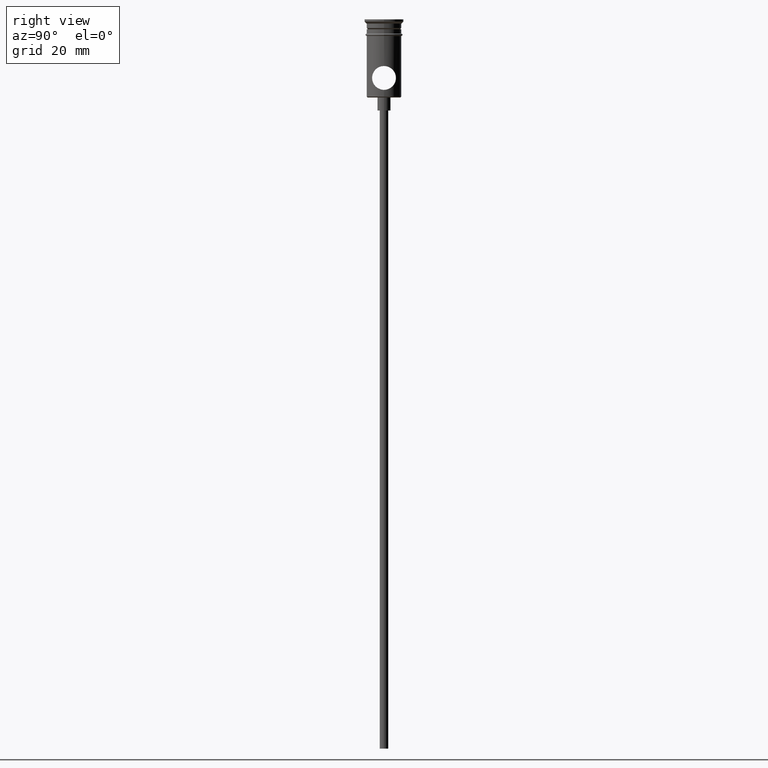
[diagram: clean part render]
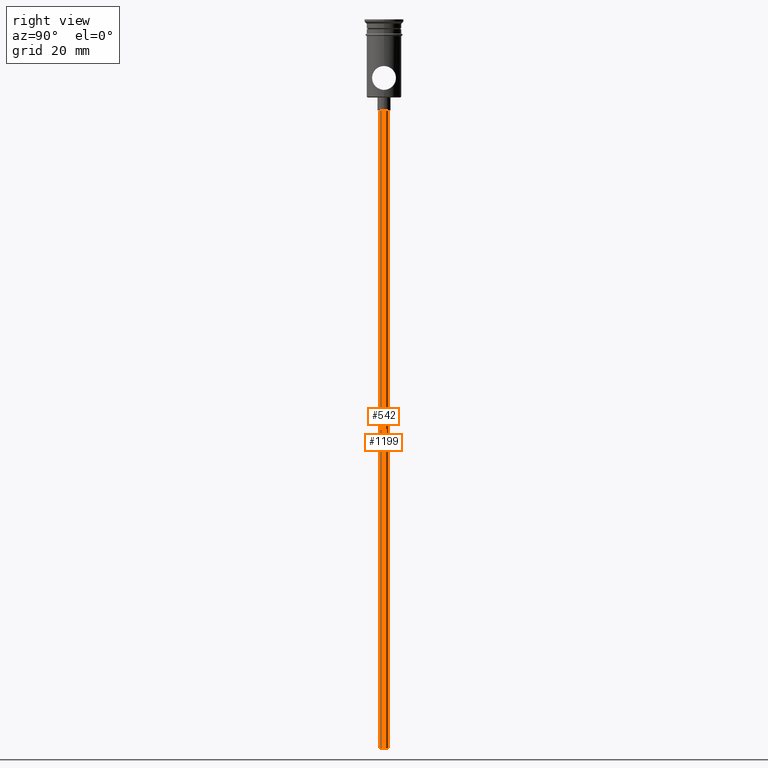
[diagram: same view with one multi-face feature highlighted, each face labeled with its STEP entity id]
A machine part, right view. The highlighted faces form ONE feature: a constant-radius fillet chain: 2 tangent blend faces with common blend radius 1 mm. The faces share edges in the B-rep.
Their STEP definitions:
[1] entity #542 (Cylinder):
#5 = EDGE_CURVE ( 'NONE', #1118, #304, #38, .T. ) ;
#32 = CARTESIAN_POINT ( 'NONE',  ( 0.000000000000000000, 0.000000000000000000, -167.9999999999999716 ) ) ;
#38 = CIRCLE ( 'NONE', #1111, 0.9999999999999997780 ) ;
#68 = CARTESIAN_POINT ( 'NONE',  ( -0.9999999999999997780, 1.224646799147352961E-16, -167.9999999999999716 ) ) ;
#85 = CARTESIAN_POINT ( 'NONE',  ( 0.9999999999999997780, 0.000000000000000000, -167.9999999999999716 ) ) ;
#88 = DIRECTION ( 'NONE',  ( 0.000000000000000000, 0.000000000000000000, -1.000000000000000000 ) ) ;
#166 = EDGE_CURVE ( 'NONE', #757, #304, #477, .T. ) ;
#191 = CARTESIAN_POINT ( 'NONE',  ( -0.9999999999999997780, 1.224646799147352961E-16, -20.99999999999999645 ) ) ;
#258 = CYLINDRICAL_SURFACE ( 'NONE', #455, 0.9999999999999997780 ) ;
#272 = DIRECTION ( 'NONE',  ( -0.000000000000000000, -0.000000000000000000, 1.000000000000000000 ) ) ;
#304 = VERTEX_POINT ( 'NONE', #191 ) ;
#337 = VERTEX_POINT ( 'NONE', #85 ) ;
#349 = DIRECTION ( 'NONE',  ( -0.000000000000000000, -0.000000000000000000, 1.000000000000000000 ) ) ;
#391 = ORIENTED_EDGE ( 'NONE', *, *, #166, .F. ) ;
#441 = ORIENTED_EDGE ( 'NONE', *, *, #5, .T. ) ;
#455 = AXIS2_PLACEMENT_3D ( 'NONE', #32, #272, #918 ) ;
#470 = CARTESIAN_POINT ( 'NONE',  ( 0.000000000000000000, 0.000000000000000000, -20.99999999999999645 ) ) ;
#477 = LINE ( 'NONE', #68, #1068 ) ;
#483 = EDGE_CURVE ( 'NONE', #337, #1118, #1331, .T. ) ;
#542 = ADVANCED_FACE ( 'NONE', ( #1254 ), #258, .T. ) ;
#558 = DIRECTION ( 'NONE',  ( -1.000000000000000000, 0.000000000000000000, 0.000000000000000000 ) ) ;
#570 = ORIENTED_EDGE ( 'NONE', *, *, #880, .F. ) ;
#650 = CARTESIAN_POINT ( 'NONE',  ( 0.9999999999999997780, 0.000000000000000000, -20.99999999999999645 ) ) ;
#741 = CARTESIAN_POINT ( 'NONE',  ( 0.000000000000000000, 0.000000000000000000, -167.9999999999999716 ) ) ;
#757 = VERTEX_POINT ( 'NONE', #988 ) ;
#811 = DIRECTION ( 'NONE',  ( -0.000000000000000000, -0.000000000000000000, 1.000000000000000000 ) ) ;
#880 = EDGE_CURVE ( 'NONE', #337, #757, #1213, .T. ) ;
#899 = DIRECTION ( 'NONE',  ( 0.000000000000000000, 0.000000000000000000, -1.000000000000000000 ) ) ;
#918 = DIRECTION ( 'NONE',  ( 1.000000000000000000, 0.000000000000000000, 0.000000000000000000 ) ) ;
#988 = CARTESIAN_POINT ( 'NONE',  ( -0.9999999999999997780, 1.224646799147352961E-16, -167.9999999999999716 ) ) ;
#1063 = DIRECTION ( 'NONE',  ( -1.000000000000000000, 0.000000000000000000, 0.000000000000000000 ) ) ;
#1068 = VECTOR ( 'NONE', #811, 1000.000000000000000 ) ;
#1103 = ORIENTED_EDGE ( 'NONE', *, *, #483, .T. ) ;
#1110 = CARTESIAN_POINT ( 'NONE',  ( 0.9999999999999997780, 0.000000000000000000, -167.9999999999999716 ) ) ;
#1111 = AXIS2_PLACEMENT_3D ( 'NONE', #470, #899, #558 ) ;
#1118 = VERTEX_POINT ( 'NONE', #650 ) ;
#1146 = EDGE_LOOP ( 'NONE', ( #391, #570, #1103, #441 ) ) ;
#1213 = CIRCLE ( 'NONE', #1236, 0.9999999999999997780 ) ;
#1236 = AXIS2_PLACEMENT_3D ( 'NONE', #741, #88, #1063 ) ;
#1254 = FACE_OUTER_BOUND ( 'NONE', #1146, .T. ) ;
#1331 = LINE ( 'NONE', #1110, #1411 ) ;
#1411 = VECTOR ( 'NONE', #349, 1000.000000000000000 ) ;
[2] entity #1199 (Cylinder):
#17 = CARTESIAN_POINT ( 'NONE',  ( 0.000000000000000000, 0.000000000000000000, -167.9999999999999716 ) ) ;
#23 = CARTESIAN_POINT ( 'NONE',  ( 0.000000000000000000, 0.000000000000000000, -167.9999999999999716 ) ) ;
#44 = DIRECTION ( 'NONE',  ( 0.000000000000000000, 0.000000000000000000, -1.000000000000000000 ) ) ;
#68 = CARTESIAN_POINT ( 'NONE',  ( -0.9999999999999997780, 1.224646799147352961E-16, -167.9999999999999716 ) ) ;
#79 = ORIENTED_EDGE ( 'NONE', *, *, #166, .T. ) ;
#85 = CARTESIAN_POINT ( 'NONE',  ( 0.9999999999999997780, 0.000000000000000000, -167.9999999999999716 ) ) ;
#159 = DIRECTION ( 'NONE',  ( 1.000000000000000000, 0.000000000000000000, 0.000000000000000000 ) ) ;
#166 = EDGE_CURVE ( 'NONE', #757, #304, #477, .T. ) ;
#172 = DIRECTION ( 'NONE',  ( -1.000000000000000000, 0.000000000000000000, 0.000000000000000000 ) ) ;
#191 = CARTESIAN_POINT ( 'NONE',  ( -0.9999999999999997780, 1.224646799147352961E-16, -20.99999999999999645 ) ) ;
#294 = AXIS2_PLACEMENT_3D ( 'NONE', #603, #44, #172 ) ;
#304 = VERTEX_POINT ( 'NONE', #191 ) ;
#337 = VERTEX_POINT ( 'NONE', #85 ) ;
#349 = DIRECTION ( 'NONE',  ( -0.000000000000000000, -0.000000000000000000, 1.000000000000000000 ) ) ;
#430 = CIRCLE ( 'NONE', #613, 0.9999999999999997780 ) ;
#454 = DIRECTION ( 'NONE',  ( 0.000000000000000000, 0.000000000000000000, -1.000000000000000000 ) ) ;
#477 = LINE ( 'NONE', #68, #1068 ) ;
#480 = EDGE_CURVE ( 'NONE', #757, #337, #430, .T. ) ;
#483 = EDGE_CURVE ( 'NONE', #337, #1118, #1331, .T. ) ;
#507 = EDGE_CURVE ( 'NONE', #304, #1118, #909, .T. ) ;
#599 = CYLINDRICAL_SURFACE ( 'NONE', #1237, 0.9999999999999997780 ) ;
#603 = CARTESIAN_POINT ( 'NONE',  ( 0.000000000000000000, 0.000000000000000000, -20.99999999999999645 ) ) ;
#613 = AXIS2_PLACEMENT_3D ( 'NONE', #17, #454, #893 ) ;
#619 = ORIENTED_EDGE ( 'NONE', *, *, #480, .F. ) ;
#650 = CARTESIAN_POINT ( 'NONE',  ( 0.9999999999999997780, 0.000000000000000000, -20.99999999999999645 ) ) ;
#697 = FACE_OUTER_BOUND ( 'NONE', #971, .T. ) ;
#757 = VERTEX_POINT ( 'NONE', #988 ) ;
#811 = DIRECTION ( 'NONE',  ( -0.000000000000000000, -0.000000000000000000, 1.000000000000000000 ) ) ;
#893 = DIRECTION ( 'NONE',  ( -1.000000000000000000, 0.000000000000000000, 0.000000000000000000 ) ) ;
#909 = CIRCLE ( 'NONE', #294, 0.9999999999999997780 ) ;
#971 = EDGE_LOOP ( 'NONE', ( #619, #79, #1308, #1133 ) ) ;
#988 = CARTESIAN_POINT ( 'NONE',  ( -0.9999999999999997780, 1.224646799147352961E-16, -167.9999999999999716 ) ) ;
#1068 = VECTOR ( 'NONE', #811, 1000.000000000000000 ) ;
#1110 = CARTESIAN_POINT ( 'NONE',  ( 0.9999999999999997780, 0.000000000000000000, -167.9999999999999716 ) ) ;
#1118 = VERTEX_POINT ( 'NONE', #650 ) ;
#1133 = ORIENTED_EDGE ( 'NONE', *, *, #483, .F. ) ;
#1199 = ADVANCED_FACE ( 'NONE', ( #697 ), #599, .T. ) ;
#1237 = AXIS2_PLACEMENT_3D ( 'NONE', #23, #1345, #159 ) ;
#1308 = ORIENTED_EDGE ( 'NONE', *, *, #507, .T. ) ;
#1331 = LINE ( 'NONE', #1110, #1411 ) ;
#1345 = DIRECTION ( 'NONE',  ( -0.000000000000000000, -0.000000000000000000, 1.000000000000000000 ) ) ;
#1411 = VECTOR ( 'NONE', #349, 1000.000000000000000 ) ;